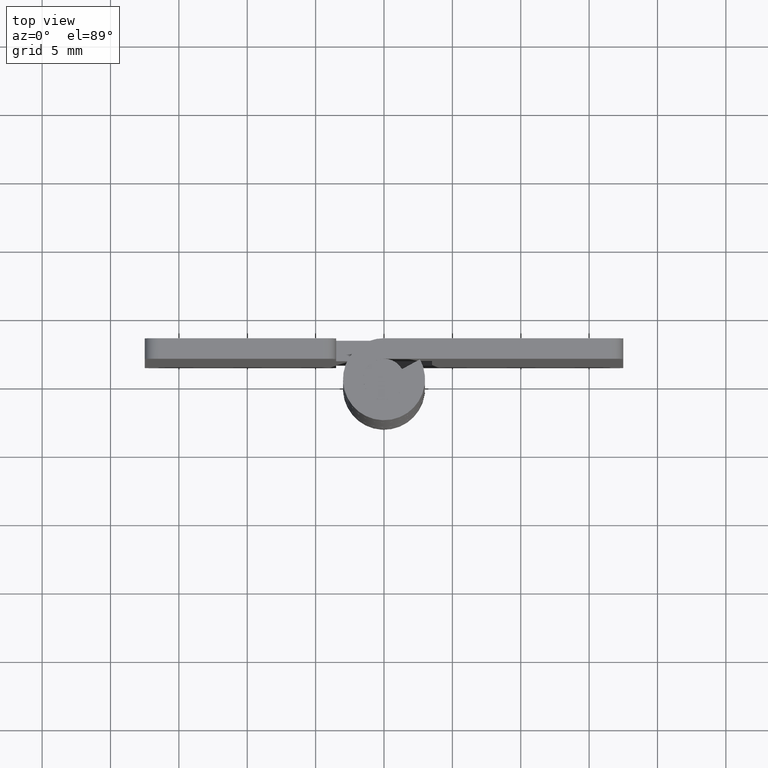
[diagram: clean part render]
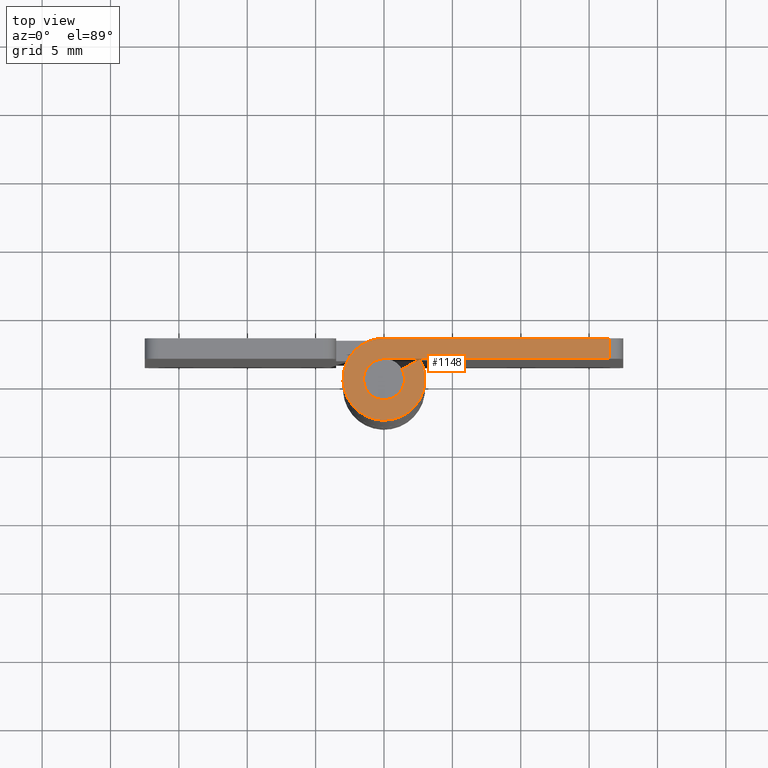
[diagram: same view with one face highlighted and labeled with its STEP entity id]
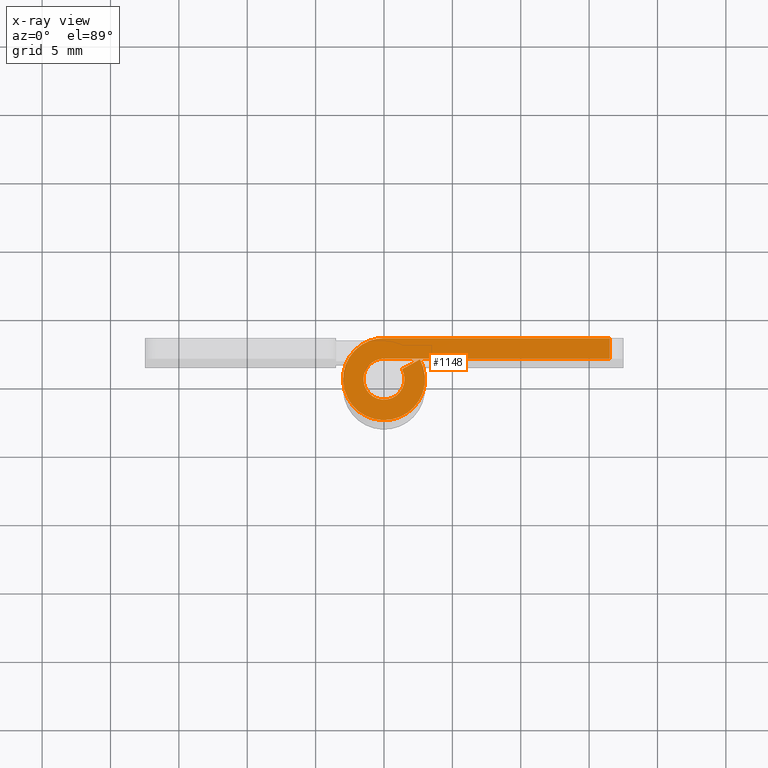
[diagram: x-ray of the same camera — body ghosted, the highlighted face saturated]
A machine part, top view. The second image highlights one B-rep face of the part: STEP entity #1148.
The next image is the same camera in x-ray: the body ghosted, the highlighted face saturated — about 0% of this face is hidden behind the body in this view.
In plain terms, the highlighted face is a freeform B-spline surface patch.
Its self-contained STEP definition (entity closure, byte-faithful):
#786=CARTESIAN_POINT('',(16.500000000000000,3.0,40.0));
#787=VERTEX_POINT('',#786);
#803=CARTESIAN_POINT('',(16.500000000000000,1.500000000000000,40.0));
#804=VERTEX_POINT('',#803);
#805=CARTESIAN_POINT('',(16.500000000000000,1.500000000000000,40.0));
#806=CARTESIAN_POINT('',(16.500000000000000,3.0,40.0));
#807=QUASI_UNIFORM_CURVE('',1,(#805,#806),.UNSPECIFIED.,.F.,.U.);
#808=EDGE_CURVE('',#804,#787,#807,.T.);
#1079=CARTESIAN_POINT('',(-3.973972965077522,-3.299492253231700,40.0));
#1080=CARTESIAN_POINT('',(17.474023011539298,-3.299492253231700,40.0));
#1081=CARTESIAN_POINT('',(-3.973972965077522,3.299690266570495,40.0));
#1082=CARTESIAN_POINT('',(17.474023011539298,3.299690266570495,40.0));
#1083=B_SPLINE_SURFACE_WITH_KNOTS('',1,1,((#1079,#1081),(#1080,#1082)),.UNSPECIFIED.,.F.,.F.,.U.,(2,2),(2,2),(0.0,21.447995976616820),(0.0,6.599182519802195),.UNSPECIFIED.);
#1084=CARTESIAN_POINT('',(0.0,1.500000000000000,40.0));
#1085=VERTEX_POINT('',#1084);
#1086=CARTESIAN_POINT('',(16.500000000000000,1.500000000000000,40.0));
#1087=CARTESIAN_POINT('',(0.0,1.500000000000000,40.0));
#1088=QUASI_UNIFORM_CURVE('',1,(#1086,#1087),.UNSPECIFIED.,.F.,.U.);
#1089=EDGE_CURVE('',#804,#1085,#1088,.T.);
#1090=ORIENTED_EDGE('',*,*,#1089,.F.);
#1091=ORIENTED_EDGE('',*,*,#808,.T.);
#1092=CARTESIAN_POINT('',(0.0,3.0,40.0));
#1093=VERTEX_POINT('',#1092);
#1094=CARTESIAN_POINT('',(0.0,3.0,40.0));
#1095=CARTESIAN_POINT('',(16.500000000000000,3.0,40.0));
#1096=QUASI_UNIFORM_CURVE('',1,(#1094,#1095),.UNSPECIFIED.,.F.,.U.);
#1097=EDGE_CURVE('',#1093,#787,#1096,.T.);
#1098=ORIENTED_EDGE('',*,*,#1097,.F.);
#1099=CARTESIAN_POINT('',(2.626309197333780,1.450000000000000,40.0));
#1100=VERTEX_POINT('',#1099);
#1101=CARTESIAN_POINT('',(2.626309197333780,1.450000000000000,40.0));
#1102=CARTESIAN_POINT('',(3.733431584505770,-0.555272902071675,40.000000000000007));
#1103=CARTESIAN_POINT('',(2.090650590886091,-2.151552952364324,40.0));
#1104=CARTESIAN_POINT('',(0.447869597266413,-3.747833002656972,40.000000000000007));
#1105=CARTESIAN_POINT('',(-1.524795068197689,-2.583602136552764,40.0));
#1106=CARTESIAN_POINT('',(-3.497459733661792,-1.419371270448555,40.000000000000007));
#1107=CARTESIAN_POINT('',(-2.894028888043301,0.790314364775722,40.0));
#1108=CARTESIAN_POINT('',(-2.290598042424809,3.000000000000000,40.000000000000007));
#1109=CARTESIAN_POINT('',(0.0,3.0,40.0));
#1117=(BOUNDED_CURVE()B_SPLINE_CURVE(2,(#1101,#1102,#1103,#1104,#1105,#1106,#1107,#1108,#1109),.UNSPECIFIED.,.F.,.U.)B_SPLINE_CURVE_WITH_KNOTS((3,2,2,2,3),(0.0,0.250000000000000,0.500000000000000,0.750000000000000,1.0),.UNSPECIFIED.)CURVE()GEOMETRIC_REPRESENTATION_ITEM()RATIONAL_B_SPLINE_CURVE((1.0,0.794807562115481,1.0,0.794807562115481,1.0,0.794807562115481,1.0,0.794807562115481,1.0))REPRESENTATION_ITEM(''));
#1118=EDGE_CURVE('',#1100,#1093,#1117,.T.);
#1119=ORIENTED_EDGE('',*,*,#1118,.F.);
#1120=CARTESIAN_POINT('',(1.313154598666890,0.725000000000000,40.0));
#1121=VERTEX_POINT('',#1120);
#1122=CARTESIAN_POINT('',(1.313154598666890,0.725000000000000,40.0));
#1123=CARTESIAN_POINT('',(2.626309197333780,1.450000000000000,40.0));
#1124=QUASI_UNIFORM_CURVE('',1,(#1122,#1123),.UNSPECIFIED.,.F.,.U.);
#1125=EDGE_CURVE('',#1121,#1100,#1124,.T.);
#1126=ORIENTED_EDGE('',*,*,#1125,.F.);
#1127=CARTESIAN_POINT('',(1.313154598666890,0.725000000000000,40.0));
#1128=CARTESIAN_POINT('',(1.866715792252885,-0.277636451035838,40.000000000000007));
#1129=CARTESIAN_POINT('',(1.045325295443045,-1.075776476182162,40.0));
#1130=CARTESIAN_POINT('',(0.223934798633207,-1.873916501328486,40.000000000000007));
#1131=CARTESIAN_POINT('',(-0.762397534098844,-1.291801068276382,40.0));
#1132=CARTESIAN_POINT('',(-1.748729866830896,-0.709685635224277,40.000000000000007));
#1133=CARTESIAN_POINT('',(-1.447014444021651,0.395157182387861,40.0));
#1134=CARTESIAN_POINT('',(-1.145299021212405,1.500000000000000,40.000000000000007));
#1135=CARTESIAN_POINT('',(0.0,1.500000000000000,40.0));
#1143=(BOUNDED_CURVE()B_SPLINE_CURVE(2,(#1127,#1128,#1129,#1130,#1131,#1132,#1133,#1134,#1135),.UNSPECIFIED.,.F.,.U.)B_SPLINE_CURVE_WITH_KNOTS((3,2,2,2,3),(0.0,0.250000000000000,0.500000000000000,0.750000000000000,1.0),.UNSPECIFIED.)CURVE()GEOMETRIC_REPRESENTATION_ITEM()RATIONAL_B_SPLINE_CURVE((1.0,0.794807562115481,1.0,0.794807562115481,1.0,0.794807562115481,1.0,0.794807562115481,1.0))REPRESENTATION_ITEM(''));
#1144=EDGE_CURVE('',#1121,#1085,#1143,.T.);
#1145=ORIENTED_EDGE('',*,*,#1144,.T.);
#1146=EDGE_LOOP('',(#1090,#1091,#1098,#1119,#1126,#1145));
#1147=FACE_OUTER_BOUND('',#1146,.T.);
#1148=ADVANCED_FACE('',(#1147),#1083,.T.);